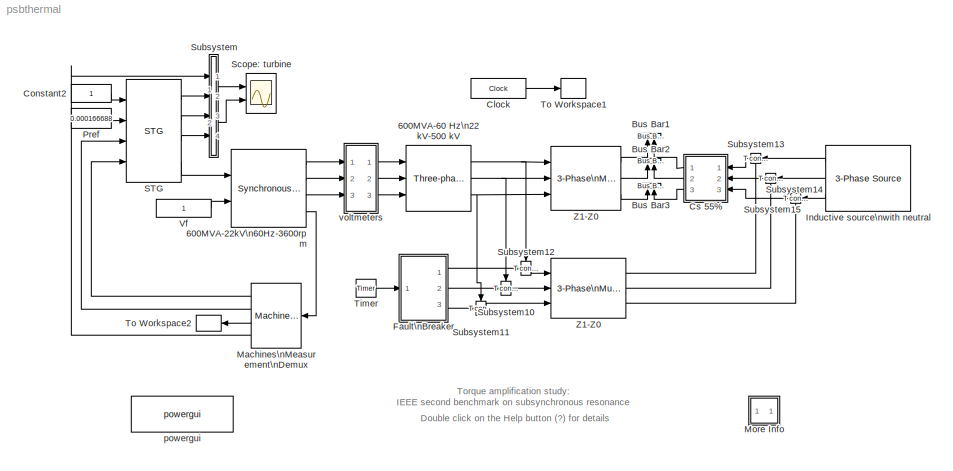
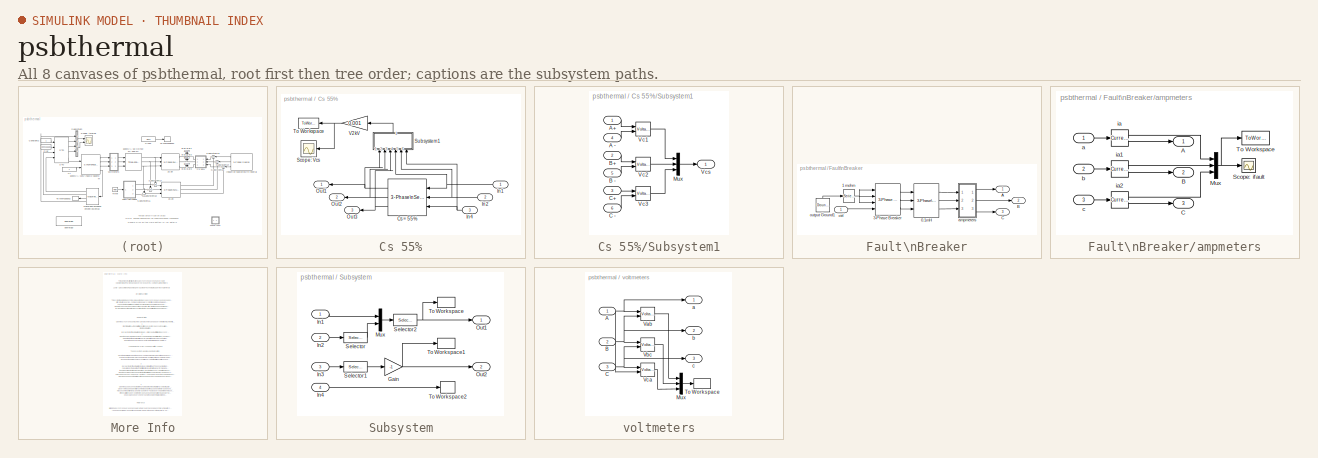
[diagram: thumbnail index - all 8 canvases of the model, root first then tree order]
MODEL psbthermal
KIND model
CONFIG InitFcn = powericon('psbinitsys',bdroot);
BLOCK [Reference] 600MVA-22kV\n60Hz-3600rpm  REF=powerlib2/Machines/Synchronous Machine\npu Fundamental
  LoadFlowParameters = [1 100000 0 0]
  PSBOutputType = 1110
  Ports = [2, 4]
  SourceBlock = powerlib2/Machines/Synchronous Machine\npu Fundamental
  SourceType = Synchronous Machine
  Tag = PoWeRsYsTeMbLoCk
  iounits = 0
  rotorType = Round
  x1 = [ 600e6  22e3   60 ]
  x2 = [  0.0045  0.14  1.51  1.45 ]
  x3 = [  0.00096  0.1186 ]
  x4 = [ 1.1685E-02  0.18167  1.9718E-02  038371 ]\n
  x4b = [ 0.016  0.132  0.00898  0.411  0.0116  0.0738 ]
  x5 = [ 0.87882   0.176*8   1 ]
  x6 = [0  0   0 0 0   0 0 0   0]
  x7 = off
  x8 = [0.6404,0.7127,0.8441,0.9214,0.9956,1.082,1.19,1.316,1.457;0.7,0.7698,0.8872,0.9466,0.9969,1.046,1.1,1.151,1.201]
BLOCK [Reference] 600MVA-60 Hz\n22 kV-500 kV  REF=powerlib2/Elements/Three-phase\nTransformer\n(Two Windings)
  PSBOutputType = 1111
  Ports = [3, 3]
  SourceBlock = powerlib2/Elements/Three-phase\nTransformer\n(Two Windings)
  SourceType = Three-Phase Transformer (Two Windings)
  Tag = PoWeRsYsTeMbLoCk
  hyst = off
  initialslopes = [+1 +1 +1]
  lm = 500
  matfile = 'hysteresis'
  mesure = None
  nominal = [ 600e6   60 ]
  params1 = [ 22e3  1e-6   0  ]
  params2 = [ 500e3  0.0012   0.12 ]
  phi0 = [ 0.8 , -0.8 , 0.7 ]
  rmag = 500
  sat = [ 0,0  ;  0.005,1.2  ;  1.0,1.4 ]
  sif = off
  type1 = Delta (D1)
  type2 = Yg
  ynsat = off
BLOCK [Reference] Bus Bar1  REF=powerlib2/Connectors/Bus Bar (horiz)
  PSBOutputType = 1111111111111111111111111111111111111111111111111111111111111111111111111
  Ports = [2]
  SourceBlock = powerlib2/Connectors/Bus Bar (horiz)
  SourceType = Bus Bar
  Tag = PoWeRsYsTeMbLoCk
  entrees = 2
  sorties = 0
BLOCK [Reference] Bus Bar2  REF=powerlib2/Connectors/Bus Bar (horiz)
  PSBOutputType = 1111111111111111111111111111111111111111111111111111111111111111111111111
  Ports = [2]
  SourceBlock = powerlib2/Connectors/Bus Bar (horiz)
  SourceType = Bus Bar
  Tag = PoWeRsYsTeMbLoCk
  entrees = 2
  sorties = 0
BLOCK [Reference] Bus Bar3  REF=powerlib2/Connectors/Bus Bar (horiz)
  PSBOutputType = 1111111111111111111111111111111111111111111111111111111111111111111111111
  Ports = [2]
  SourceBlock = powerlib2/Connectors/Bus Bar (horiz)
  SourceType = Bus Bar
  Tag = PoWeRsYsTeMbLoCk
  entrees = 2
  sorties = 0
BLOCK [Clock] Clock
  Decimation = 100
  DisplayTime = on
BLOCK [Constant] Constant2
BLOCK [SubSystem] Cs 55%
  MaskDisplay = plot(0,0,100,100,[40,10],[50,50],[90,60],[50,50],[40,40],[20,80],[60,60],[20,80])
  MaskIconFrame = on
  MaskIconOpaque = on
  MaskIconRotate = none
  MaskIconUnits = autoscale
  MinAlgLoopOccurrences = off
  Ports = [3, 3]
  RTWSystemCode = Auto
  TreatAsAtomicUnit = off
BLOCK [Reference] Cs 55%/Cs = 55%  REF=powerlib2/Elements/3-Phase\nSeries RLC Branch 
  C = 1/(0.55*0.5305*(120*pi)^2)
  L = 0
  Ports = [3, 3]
  R = 0
  SourceBlock = powerlib2/Elements/3-Phase\nSeries RLC Branch
  SourceType = 3-phase RLC series element
BLOCK [Inport] Cs 55%/In1
  IconDisplay = Port number
  LatchInput = off
  Port = 1
BLOCK [Inport] Cs 55%/In2
  IconDisplay = Port number
  LatchInput = off
  Port = 2
BLOCK [Inport] Cs 55%/In4
  IconDisplay = Port number
  LatchInput = off
  Port = 3
BLOCK [Outport] Cs 55%/Out1
  BusOutputAsStruct = off
  IconDisplay = Port number
BLOCK [Outport] Cs 55%/Out2
  BusOutputAsStruct = off
  IconDisplay = Port number
  Port = 2
BLOCK [Outport] Cs 55%/Out3
  BusOutputAsStruct = off
  IconDisplay = Port number
  Port = 3
BLOCK [Scope] Cs 55%/Scope: Vcs
  DataFormat = StructureWithTime
  LimitDataPoints = off
  NumInputPorts = 1
  Ports = [1]
  YMax = 500
  YMin = -500
BLOCK [SubSystem] Cs 55%/Subsystem1
  MinAlgLoopOccurrences = off
  Ports = [6, 1]
  RTWSystemCode = Auto
  TreatAsAtomicUnit = off
BLOCK [Inport] Cs 55%/Subsystem1/A -
  IconDisplay = Port number
  LatchInput = off
  Port = 4
BLOCK [Inport] Cs 55%/Subsystem1/A+
  IconDisplay = Port number
  LatchInput = off
  Port = 1
BLOCK [Inport] Cs 55%/Subsystem1/B -
  IconDisplay = Port number
  LatchInput = off
  Port = 5
BLOCK [Inport] Cs 55%/Subsystem1/B+
  IconDisplay = Port number
  LatchInput = off
  Port = 2
BLOCK [Inport] Cs 55%/Subsystem1/C -
  IconDisplay = Port number
  LatchInput = off
  Port = 6
BLOCK [Inport] Cs 55%/Subsystem1/C+
  IconDisplay = Port number
  LatchInput = off
  Port = 3
BLOCK [Mux] Cs 55%/Subsystem1/Mux
  DisplayOption = bar
  Inputs = 3
  Ports = [3, 1]
BLOCK [Reference] Cs 55%/Subsystem1/Vc1  REF=powerlib2/Measurements/Voltage Measurement
  OutputType = Magnitude
  PSBOutputType = 0
  PSBequivalent = 0
  PhasorSimulation = off
  Ports = [2, 1]
  SourceBlock = powerlib2/Measurements/Voltage Measurement
  SourceType = Voltage Measurement
  Tag = PoWeRsYsTeMmEaSuReMeNt
BLOCK [Reference] Cs 55%/Subsystem1/Vc2  REF=powerlib2/Measurements/Voltage Measurement
  OutputType = Magnitude
  PSBOutputType = 0
  PSBequivalent = 0
  PhasorSimulation = off
  Ports = [2, 1]
  SourceBlock = powerlib2/Measurements/Voltage Measurement
  SourceType = Voltage Measurement
  Tag = PoWeRsYsTeMmEaSuReMeNt
BLOCK [Reference] Cs 55%/Subsystem1/Vc3  REF=powerlib2/Measurements/Voltage Measurement
  OutputType = Magnitude
  PSBOutputType = 0
  PSBequivalent = 0
  PhasorSimulation = off
  Ports = [2, 1]
  SourceBlock = powerlib2/Measurements/Voltage Measurement
  SourceType = Voltage Measurement
  Tag = PoWeRsYsTeMmEaSuReMeNt
BLOCK [Outport] Cs 55%/Subsystem1/Vcs
  BusOutputAsStruct = off
  IconDisplay = Port number
BLOCK [ToWorkspace] Cs 55%/To Workspace
  MaxDataPoints = inf
  SaveFormat = Array
  VariableName = vcs
BLOCK [Gain] Cs 55%/V2kV
  Gain = 0.001
BLOCK [SubSystem] Fault\nBreaker
  MinAlgLoopOccurrences = off
  Ports = [1, 3]
  RTWSystemCode = Auto
  TreatAsAtomicUnit = off
BLOCK [Reference] Fault\nBreaker/0.1mH  REF=powerlib2/Elements/3-Phase\nSeries RLC Branch 
  C = inf
  L = 0.1e-3
  Ports = [3, 3]
  R = 0
  SourceBlock = powerlib2/Elements/3-Phase\nSeries RLC Branch
  SourceType = 3-phase RLC series element
BLOCK [Reference] Fault\nBreaker/1 mohm  REF=powerlib2/Elements/Series RLC Branch
  PSBOutputType = 1
  Ports = [1, 1]
  SourceBlock = powerlib2/Elements/Series RLC Branch
  SourceType = Series RLC Branch
  Tag = PoWeRsYsTeMbLoCk
  a = 0.001
  b = 0
  c = inf
  mesure = None
BLOCK [Reference] Fault\nBreaker/3-Phase Breaker  REF=powerlib2/Elements/3-Phase Breaker
  Cp = inf
  Ports = [4, 3]
  Ron = 0.001
  Rp = 1e6
  SourceBlock = powerlib2/Elements/3-Phase Breaker
  SourceType = Three-Phase Breaker
  Ts = 0
  comext = on
  init_states = open
  mesure = None
  sa = on
  sb = on
  sc = on
  sw_times = [4/60  10/60]
BLOCK [Outport] Fault\nBreaker/A
  BusOutputAsStruct = off
  IconDisplay = Port number
BLOCK [Outport] Fault\nBreaker/B
  BusOutputAsStruct = off
  IconDisplay = Port number
  Port = 2
BLOCK [Outport] Fault\nBreaker/C
  BusOutputAsStruct = off
  IconDisplay = Port number
  Port = 3
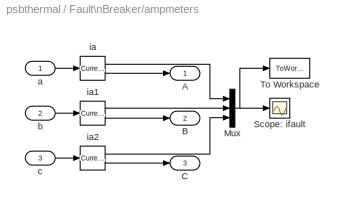
BLOCK [SubSystem] Fault\nBreaker/ampmeters
  MinAlgLoopOccurrences = off
  Ports = [3, 3]
  RTWSystemCode = Auto
  TreatAsAtomicUnit = off
BLOCK [Outport] Fault\nBreaker/ampmeters/A
  BusOutputAsStruct = off
  IconDisplay = Port number
BLOCK [Outport] Fault\nBreaker/ampmeters/B
  BusOutputAsStruct = off
  IconDisplay = Port number
  Port = 2
BLOCK [Outport] Fault\nBreaker/ampmeters/C
  BusOutputAsStruct = off
  IconDisplay = Port number
  Port = 3
BLOCK [Mux] Fault\nBreaker/ampmeters/Mux
  DisplayOption = bar
  Inputs = 3
  Ports = [3, 1]
BLOCK [Scope] Fault\nBreaker/ampmeters/Scope: ifault
  DataFormat = StructureWithTime
  LimitDataPoints = off
  NumInputPorts = 1
  Ports = [1]
  YMax = 9000
  YMin = -9000
BLOCK [ToWorkspace] Fault\nBreaker/ampmeters/To Workspace
  MaxDataPoints = inf
  SaveFormat = Array
  VariableName = ifault
BLOCK [Inport] Fault\nBreaker/ampmeters/a
  IconDisplay = Port number
  LatchInput = off
  Port = 1
BLOCK [Inport] Fault\nBreaker/ampmeters/b
  IconDisplay = Port number
  LatchInput = off
  Port = 2
BLOCK [Inport] Fault\nBreaker/ampmeters/c
  IconDisplay = Port number
  LatchInput = off
  Port = 3
BLOCK [Reference] Fault\nBreaker/ampmeters/ia  REF=powerlib2/Measurements/Current Measurement
  OutputType = Magnitude
  PSBOutputType = 01
  PSBequivalent = 0
  PhasorSimulation = off
  Ports = [1, 2]
  SourceBlock = powerlib2/Measurements/Current Measurement
  SourceType = Current Measurement
  Tag = PoWeRsYsTeMmEaSuReMeNt
BLOCK [Reference] Fault\nBreaker/ampmeters/ia1  REF=powerlib2/Measurements/Current Measurement
  OutputType = Magnitude
  PSBOutputType = 01
  PSBequivalent = 0
  PhasorSimulation = off
  Ports = [1, 2]
  SourceBlock = powerlib2/Measurements/Current Measurement
  SourceType = Current Measurement
  Tag = PoWeRsYsTeMmEaSuReMeNt
BLOCK [Reference] Fault\nBreaker/ampmeters/ia2  REF=powerlib2/Measurements/Current Measurement
  OutputType = Magnitude
  PSBOutputType = 01
  PSBequivalent = 0
  PhasorSimulation = off
  Ports = [1, 2]
  SourceBlock = powerlib2/Measurements/Current Measurement
  SourceType = Current Measurement
  Tag = PoWeRsYsTeMmEaSuReMeNt
BLOCK [Inport] Fault\nBreaker/ctrl
  IconDisplay = Port number
  LatchInput = off
  Port = 1
BLOCK [Reference] Fault\nBreaker/output Ground1  REF=powerlib2/Connectors/Ground (output)
  PSBOutputType = 1
  Ports = [0, 1]
  SourceBlock = powerlib2/Connectors/Ground (output)
  SourceType = Ground
  Tag = PoWeRsYsTeMbLoCk
BLOCK [Reference] Inductive source\nwith neutral  REF=powerlib2/Electrical\nSources/3-Phase Source
  F = 60
  InternalConnection = Yg
  L = 0.1989
  PSBOutputType = 111
  Phi = 0
  Ports = [0, 3]
  Psc = 0
  R = 3.5
  RLoff = off
  SourceBlock = powerlib2/Electrical\nSources/3-Phase Source
  SourceType = 3-Phase Source
  Tag = PoWeRsYsTeMbLoCk
  V = 500e3
  Vbase = 0
  XRratio = 0
BLOCK [Reference] Machines\nMeasurement\nDemux  REF=powerlib2/Machines/Machines\nMeasurement\nDemux
  Ports = [1, 4]
  SourceBlock = powerlib2/Machines/Machines\nMeasurement\nDemux
  SourceType = Machine measurements
  asm1 = on
  asm10 = on
  asm11 = on
  asm2 = on
  asm3 = on
  asm4 = on
  asm5 = on
  asm6 = on
  asm7 = on
  asm8 = on
  asm9 = on
  lastType = 2
  machType = Synchronous
  pmsm1 = on
  pmsm2 = on
  pmsm3 = on
  pmsm4 = on
  pmsm5 = on
  pmsm6 = on
  sm1 = off
  sm10 = on
  sm11 = off
  sm115 = off
  sm12 = off
  sm13 = off
  sm14 = off
  sm2 = off
  sm3 = off
  sm4 = off
  sm5 = off
  sm6 = off
  sm7 = on
  sm8 = on
  sm9 = on
  ssm1 = on
  ssm2 = on
  ssm3 = on
  ssm4 = on
  ssm5 = on
  ssm6 = on
BLOCK [SubSystem] More Info
  MaskDisplay = disp('?')
  MaskIconFrame = on
  MaskIconOpaque = on
  MaskIconRotate = none
  MaskIconUnits = autoscale
  MinAlgLoopOccurrences = off
  Ports = []
  RTWSystemCode = Auto
  TreatAsAtomicUnit = off
BLOCK [Constant] Pref
  Value = 0.000166688
BLOCK [Reference] STG  REF=powerlib2/Machines/STG
  DA = [  0.3104  0.05  0  0 ]*8
  HA = [  1.5498   0.24894  0  0 ]
  KA = [  83.47  42.702  0  0 ]
  Ports = [4, 4]
  SourceBlock = powerlib2/Machines/STG
  SourceType = Steam Turbine and Governor
  gentype = Tandem-compound (multi-mass)
  ini1 = 250.35/555
  ini2 = [0.000166688,-120.04]
  reg1 = [ 1  0.05    0 ]
  reg2 = [ 0.001  0.15 ]
  reg3 = [ -0.1  0.1  0.00016668  0.00016668*1.01 ]
  turb1 = [ 0  10   3.3   0.5   ]
  turb2 = [ 0.5   0.5   0  0 ]
BLOCK [Scope] Scope: turbine
  DataFormat = StructureWithTime
  LimitDataPoints = off
  NumInputPorts = 2
  Ports = [2]
  TimeRange = 0.5
  YMax = 0.6~130
  YMin = -0.9~-70
  ZoomMode = xonly
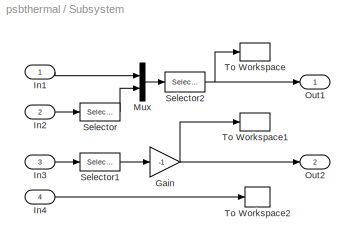
BLOCK [SubSystem] Subsystem
  MinAlgLoopOccurrences = off
  Ports = [4, 2]
  RTWSystemCode = Auto
  TreatAsAtomicUnit = off
BLOCK [Gain] Subsystem/Gain
  Gain = -1
BLOCK [Inport] Subsystem/In1
  IconDisplay = Port number
  LatchInput = off
  Port = 1
BLOCK [Inport] Subsystem/In2
  IconDisplay = Port number
  LatchInput = off
  Port = 2
BLOCK [Inport] Subsystem/In3
  IconDisplay = Port number
  LatchInput = off
  Port = 3
BLOCK [Inport] Subsystem/In4
  IconDisplay = Port number
  LatchInput = off
  Port = 4
BLOCK [Mux] Subsystem/Mux
  DisplayOption = bar
  Inputs = 2
  Ports = [2, 1]
BLOCK [Outport] Subsystem/Out1
  BusOutputAsStruct = off
  IconDisplay = Port number
BLOCK [Outport] Subsystem/Out2
  BusOutputAsStruct = off
  IconDisplay = Port number
  Port = 2
BLOCK [Selector] Subsystem/Selector
  Elements = [3 4]
  InputPortWidth = 4
  Ports = [1, 1]
BLOCK [Selector] Subsystem/Selector1
  Elements = [3 4]
  InputPortWidth = 4
  Ports = [1, 1]
BLOCK [Selector] Subsystem/Selector2
  Elements = [2 3 1]
  InputPortWidth = 3
  Ports = [1, 1]
BLOCK [ToWorkspace] Subsystem/To Workspace
  MaxDataPoints = inf
  SaveFormat = Array
  VariableName = dw
BLOCK [ToWorkspace] Subsystem/To Workspace1
  MaxDataPoints = inf
  SaveFormat = Array
  VariableName = T
BLOCK [ToWorkspace] Subsystem/To Workspace2
  MaxDataPoints = inf
  SaveFormat = Array
  VariableName = g
BLOCK [Reference] Subsystem10  REF=powerlib2/Connectors/T connector
  PSBOutputType = 1
  Ports = [1, 1, 1]
  SourceBlock = powerlib2/Connectors/T connector
  SourceType = Bus Bar
  Tag = PoWeRsYsTeMbLoCk
BLOCK [Reference] Subsystem11  REF=powerlib2/Connectors/T connector
  PSBOutputType = 1
  Ports = [1, 1, 1]
  SourceBlock = powerlib2/Connectors/T connector
  SourceType = Bus Bar
  Tag = PoWeRsYsTeMbLoCk
BLOCK [Reference] Subsystem12  REF=powerlib2/Connectors/T connector
  PSBOutputType = 1
  Ports = [1, 1, 1]
  SourceBlock = powerlib2/Connectors/T connector
  SourceType = Bus Bar
  Tag = PoWeRsYsTeMbLoCk
BLOCK [Reference] Subsystem13  REF=powerlib2/Connectors/T connector
  PSBOutputType = 1
  Ports = [1, 1, 1]
  SourceBlock = powerlib2/Connectors/T connector
  SourceType = Bus Bar
  Tag = PoWeRsYsTeMbLoCk
BLOCK [Reference] Subsystem14  REF=powerlib2/Connectors/T connector
  PSBOutputType = 1
  Ports = [1, 1, 1]
  SourceBlock = powerlib2/Connectors/T connector
  SourceType = Bus Bar
  Tag = PoWeRsYsTeMbLoCk
BLOCK [Reference] Subsystem15  REF=powerlib2/Connectors/T connector
  PSBOutputType = 1
  Ports = [1, 1, 1]
  SourceBlock = powerlib2/Connectors/T connector
  SourceType = Bus Bar
  Tag = PoWeRsYsTeMbLoCk
BLOCK [Reference] Timer  REF=powerlib_extras/Control \nBlocks/Timer
  Ports = [0, 1]
  SourceBlock = powerlib_extras/Control \nBlocks/Timer
  SourceType = Timer
  e = [ 1 0 ]
  t = [ 0.022289  0.022289+0.017 ]
BLOCK [ToWorkspace] To Workspace1
  MaxDataPoints = inf
  SaveFormat = Array
  VariableName = t
BLOCK [ToWorkspace] To Workspace2
  MaxDataPoints = inf
  SaveFormat = Array
  VariableName = Pe
BLOCK [Constant] Vf
BLOCK [Reference] Z1-Z0  REF=powerlib2/Elements/3-Phase\nMutual Inductance\nZ1-Z0
  Ports = [3, 3]
  RL0 = [ 55.0  1.5915 ]
  RL1 = [ 18.5  0.5305 ]
  SourceBlock = powerlib2/Elements/3-Phase\nMutual Inductance\nZ1-Z0
  SourceType = 3-phase RL  positive & zero-sequence impedance
BLOCK [Reference] Z1-Z0   REF=powerlib2/Elements/3-Phase\nMutual Inductance\nZ1-Z0
  Ports = [3, 3]
  RL0 = [ 46.5  1.3926 ]
  RL1 = [ 16.75  0.4901 ]
  SourceBlock = powerlib2/Elements/3-Phase\nMutual Inductance\nZ1-Z0
  SourceType = 3-phase RL  positive & zero-sequence impedance
BLOCK [Reference] powergui  REF=powerlib2/powergui
  DisplayStyle = off
  Frange = logspace(0,3,50)
  FreqAxis = off
  MaxFrequency = 1000
  Ports = []
  RmsSteady = 1
  SourceBlock = powerlib2/powergui
  SourceType = PSB option menu block
  StartTime = 0.0
  Ts = 0
  Xlog = off
  Ylog = off
  ZoomFFT = on
  cycles = 2
  display = off
  echomessages = off
  frequency = 60
  frequencyindice = 1
  frequencyindicesteady = 1
  fundamental = 60
  methode = off
  save = off
  variable = ZData
BLOCK [SubSystem] voltmeters
  MinAlgLoopOccurrences = off
  Ports = [3, 3]
  RTWSystemCode = Auto
  TreatAsAtomicUnit = off
BLOCK [Inport] voltmeters/A
  IconDisplay = Port number
  LatchInput = off
  Port = 1
BLOCK [Inport] voltmeters/B
  IconDisplay = Port number
  LatchInput = off
  Port = 2
BLOCK [Inport] voltmeters/C
  IconDisplay = Port number
  LatchInput = off
  Port = 3
BLOCK [Mux] voltmeters/Mux
  DisplayOption = bar
  Inputs = 3
  Ports = [3, 1]
BLOCK [ToWorkspace] voltmeters/To Workspace
  MaxDataPoints = inf
  SaveFormat = Array
  VariableName = vt
BLOCK [Reference] voltmeters/Vab  REF=powerlib2/Measurements/Voltage Measurement
  OutputType = Magnitude
  PSBOutputType = 0
  PSBequivalent = 0
  PhasorSimulation = off
  Ports = [2, 1]
  SourceBlock = powerlib2/Measurements/Voltage Measurement
  SourceType = Voltage Measurement
  Tag = PoWeRsYsTeMmEaSuReMeNt
BLOCK [Reference] voltmeters/Vbc  REF=powerlib2/Measurements/Voltage Measurement
  OutputType = Magnitude
  PSBOutputType = 0
  PSBequivalent = 0
  PhasorSimulation = off
  Ports = [2, 1]
  SourceBlock = powerlib2/Measurements/Voltage Measurement
  SourceType = Voltage Measurement
  Tag = PoWeRsYsTeMmEaSuReMeNt
BLOCK [Reference] voltmeters/Vca  REF=powerlib2/Measurements/Voltage Measurement
  OutputType = Magnitude
  PSBOutputType = 0
  PSBequivalent = 1
  PhasorSimulation = off
  Ports = [2, 1]
  SourceBlock = powerlib2/Measurements/Voltage Measurement
  SourceType = Voltage Measurement
  Tag = PoWeRsYsTeMmEaSuReMeNt
BLOCK [Outport] voltmeters/a
  BusOutputAsStruct = off
  IconDisplay = Port number
BLOCK [Outport] voltmeters/b
  BusOutputAsStruct = off
  IconDisplay = Port number
  Port = 2
BLOCK [Outport] voltmeters/c
  BusOutputAsStruct = off
  IconDisplay = Port number
  Port = 3
ANNOTATION (root): Double click on the Help button (?) for details
ANNOTATION (root): Torque amplification study:\nIEEE second benchmark on subsynchronous resonance
ANNOTATION More Info: 1
ANNOTATION More Info: 2
ANNOTATION More Info: 3
ANNOTATION More Info: 4
ANNOTATION More Info: Circuit Description
ANNOTATION More Info: Demonstration
ANNOTATION More Info: In order to start the simulation in steady state with the STG connected, this Simulink block must also be initialized according to the values \ncalculated by the load flow. This initialization is automatically performed when you execute the Load Flow, as long as you connect at\nthe Pm and Vf inputs of the machine either Constant blocks or regulation blocks from the machine library (HTG, STG, or Ex...<+457ch>
ANNOTATION More Info: In order to start the simulation in steady-state you must initialize the synchronous machine for the desired load flow.\nOpen the POWERGUI and select \"Load Flow & Machine initialization\" . The machine \"Bus type\" should be already initialized as \"PV generator\",\nindicating that the load flow will be performed with the machine controlling its active power and terminal voltage.\nSpecify the des...<+49ch>
ANNOTATION More Info: Load Flow: U AB (Vrms) = 22000 , P (wattts) =100e3
ANNOTATION More Info: Louis-A. Dessaint and R. Champagne (Ecole de Technologie Superieure, Montreal)
ANNOTATION More Info: Open the Scope connected to the STG model. Run the simulation by selecting Start from the Simulation menu. \nObserve the speed deviations on the top axis of the Scope and the torques transmitted between the shaft's \nmasses on the bottom axis. A peak torque of over 4 pu is observed between masses 1 and 2. The frequency \nof the oscillations oberved in the torques and speed deviations is about 27 H...<+95ch>
ANNOTATION More Info: Open the synchronous machine (SM) block menu and observe that the machine intial conditions (last line) are set to zero.\nStart Simulation. As the SM initial conditions are not properly set you will observe that simulation does not start in steady state.\nStop the simulation.
ANNOTATION More Info: Reference
ANNOTATION More Info: Then press the \"Update Load Flow\" button.\n\nOnce the load flow is solved the phasors of AB and BC machine voltages and currents flowing in phases A and B are updated.\nThe SM reactive power, mechanical power and field voltage are displayed : Q = 1.30 Mvar, Pmec = 100 kW (0.0001667 pu), field voltage Ef = 1.0036 pu;\nIf you open the SM block menu you will observe that the initial conditions have...<+14ch>
ANNOTATION More Info: This demonstration illustrates subsynchronous resonance (SSR)\nusing the Steam Turbine and Governor on a series-compensated network
ANNOTATION More Info: This system is an IEEE benchmark [1] used to study subsynchronous resonance and particularly torque amplification\nafter a fault on a series-compensated power system. It consists in a single generator (600 MVA/22kV/60 Hz/3600 rpm)\nconnected to an infinite bus via two transmission lines, one of which is series-compensated. The subsynchronous \nmode introduced by the compensation capacitor after a ...<+157ch>
ANNOTATION More Info: [1] IEEE Subsynchronous resonance working group, \"Second benchmark model for computer simulation of subsynchronous\n resonance\", IEEE Transactions on power apparatus and systems, vol. PAS-104, no. 5, 1985, pp. 1057-1066.
LINE 600MVA-22kV\n60Hz-3600rpm:1 -> voltmeters:1
LINE 600MVA-22kV\n60Hz-3600rpm:2 -> voltmeters:2
LINE 600MVA-22kV\n60Hz-3600rpm:3 -> voltmeters:3
LINE 600MVA-22kV\n60Hz-3600rpm:4 -> Machines\nMeasurement\nDemux:1
NET 600MVA-60 Hz\n22 kV-500 kV:1 -> Subsystem12:enable, Z1-Z0:1
NET 600MVA-60 Hz\n22 kV-500 kV:2 -> Subsystem10:enable, Z1-Z0:2
NET 600MVA-60 Hz\n22 kV-500 kV:3 -> Subsystem11:enable, Z1-Z0:3
LINE Clock:1 -> To Workspace1:1
LINE Constant2:1 -> STG:1
NET Cs 55%/Cs = 55%:1 -> Cs 55%/Out1:1, Cs 55%/Subsystem1:1
NET Cs 55%/Cs = 55%:2 -> Cs 55%/Out2:1, Cs 55%/Subsystem1:2
NET Cs 55%/Cs = 55%:3 -> Cs 55%/Out3:1, Cs 55%/Subsystem1:3
NET Cs 55%/In1:1 -> Cs 55%/Cs = 55%:1, Cs 55%/Subsystem1:4
NET Cs 55%/In2:1 -> Cs 55%/Cs = 55%:2, Cs 55%/Subsystem1:5
NET Cs 55%/In4:1 -> Cs 55%/Cs = 55%:3, Cs 55%/Subsystem1:6
LINE Cs 55%/Subsystem1/A -:1 -> Cs 55%/Subsystem1/Vc1:2
LINE Cs 55%/Subsystem1/A+:1 -> Cs 55%/Subsystem1/Vc1:1
LINE Cs 55%/Subsystem1/B -:1 -> Cs 55%/Subsystem1/Vc2:2
LINE Cs 55%/Subsystem1/B+:1 -> Cs 55%/Subsystem1/Vc2:1
LINE Cs 55%/Subsystem1/C -:1 -> Cs 55%/Subsystem1/Vc3:2
LINE Cs 55%/Subsystem1/C+:1 -> Cs 55%/Subsystem1/Vc3:1
LINE Cs 55%/Subsystem1/Mux:1 -> Cs 55%/Subsystem1/Vcs:1
LINE Cs 55%/Subsystem1/Vc1:1 -> Cs 55%/Subsystem1/Mux:1
LINE Cs 55%/Subsystem1/Vc2:1 -> Cs 55%/Subsystem1/Mux:2
LINE Cs 55%/Subsystem1/Vc3:1 -> Cs 55%/Subsystem1/Mux:3
LINE Cs 55%/Subsystem1:1 -> Cs 55%/V2kV:1
NET Cs 55%/V2kV:1 -> Cs 55%/Scope: Vcs:1, Cs 55%/To Workspace:1
LINE Cs 55%:1 -> Bus Bar1:2
LINE Cs 55%:2 -> Bus Bar2:2
LINE Cs 55%:3 -> Bus Bar3:2
LINE Fault\nBreaker/0.1mH:1 -> Fault\nBreaker/ampmeters:1
LINE Fault\nBreaker/0.1mH:2 -> Fault\nBreaker/ampmeters:2
LINE Fault\nBreaker/0.1mH:3 -> Fault\nBreaker/ampmeters:3
NET Fault\nBreaker/1 mohm:1 -> Fault\nBreaker/3-Phase Breaker:1, Fault\nBreaker/3-Phase Breaker:2, Fault\nBreaker/3-Phase Breaker:3
LINE Fault\nBreaker/3-Phase Breaker:1 -> Fault\nBreaker/0.1mH:1
LINE Fault\nBreaker/3-Phase Breaker:2 -> Fault\nBreaker/0.1mH:2
LINE Fault\nBreaker/3-Phase Breaker:3 -> Fault\nBreaker/0.1mH:3
NET Fault\nBreaker/ampmeters/Mux:1 -> Fault\nBreaker/ampmeters/Scope: ifault:1, Fault\nBreaker/ampmeters/To Workspace:1
LINE Fault\nBreaker/ampmeters/a:1 -> Fault\nBreaker/ampmeters/ia:1
LINE Fault\nBreaker/ampmeters/b:1 -> Fault\nBreaker/ampmeters/ia1:1
LINE Fault\nBreaker/ampmeters/c:1 -> Fault\nBreaker/ampmeters/ia2:1
LINE Fault\nBreaker/ampmeters/ia1:1 -> Fault\nBreaker/ampmeters/Mux:2
LINE Fault\nBreaker/ampmeters/ia1:2 -> Fault\nBreaker/ampmeters/B:1
LINE Fault\nBreaker/ampmeters/ia2:1 -> Fault\nBreaker/ampmeters/Mux:3
LINE Fault\nBreaker/ampmeters/ia2:2 -> Fault\nBreaker/ampmeters/C:1
LINE Fault\nBreaker/ampmeters/ia:1 -> Fault\nBreaker/ampmeters/Mux:1
LINE Fault\nBreaker/ampmeters/ia:2 -> Fault\nBreaker/ampmeters/A:1
LINE Fault\nBreaker/ampmeters:1 -> Fault\nBreaker/A:1
LINE Fault\nBreaker/ampmeters:2 -> Fault\nBreaker/B:1
LINE Fault\nBreaker/ampmeters:3 -> Fault\nBreaker/C:1
LINE Fault\nBreaker/ctrl:1 -> Fault\nBreaker/3-Phase Breaker:4
LINE Fault\nBreaker/output Ground1:1 -> Fault\nBreaker/1 mohm:1
LINE Fault\nBreaker:1 -> Subsystem12:1
LINE Fault\nBreaker:2 -> Subsystem10:1
LINE Fault\nBreaker:3 -> Subsystem11:1
LINE Inductive source\nwith neutral:1 -> Subsystem13:1
LINE Inductive source\nwith neutral:2 -> Subsystem14:1
LINE Inductive source\nwith neutral:3 -> Subsystem15:1
LINE Machines\nMeasurement\nDemux:1 -> STG:4
LINE Machines\nMeasurement\nDemux:2 -> STG:3
LINE Machines\nMeasurement\nDemux:3 -> To Workspace2:1
LINE Machines\nMeasurement\nDemux:4 -> Subsystem:1
LINE Pref:1 -> STG:2
LINE STG:1 -> Subsystem:2
LINE STG:2 -> Subsystem:3
LINE STG:3 -> Subsystem:4
LINE STG:4 -> 600MVA-22kV\n60Hz-3600rpm:1
NET Subsystem/Gain:1 -> Subsystem/Out2:1, Subsystem/To Workspace1:1
LINE Subsystem/In1:1 -> Subsystem/Mux:1
LINE Subsystem/In2:1 -> Subsystem/Selector:1
LINE Subsystem/In3:1 -> Subsystem/Selector1:1
LINE Subsystem/In4:1 -> Subsystem/To Workspace2:1
LINE Subsystem/Mux:1 -> Subsystem/Selector2:1
LINE Subsystem/Selector1:1 -> Subsystem/Gain:1
NET Subsystem/Selector2:1 -> Subsystem/Out1:1, Subsystem/To Workspace:1
LINE Subsystem/Selector:1 -> Subsystem/Mux:2
LINE Subsystem10:1 -> Z1-Z0 :2
LINE Subsystem11:1 -> Z1-Z0 :3
LINE Subsystem12:1 -> Z1-Z0 :1
LINE Subsystem13:1 -> Cs 55%:1
LINE Subsystem14:1 -> Cs 55%:2
LINE Subsystem15:1 -> Cs 55%:3
LINE Subsystem:1 -> Scope: turbine:1
LINE Subsystem:2 -> Scope: turbine:2
LINE Timer:1 -> Fault\nBreaker:1
LINE Vf:1 -> 600MVA-22kV\n60Hz-3600rpm:2
LINE Z1-Z0 :1 -> Subsystem13:enable
LINE Z1-Z0 :2 -> Subsystem14:enable
LINE Z1-Z0 :3 -> Subsystem15:enable
LINE Z1-Z0:1 -> Bus Bar1:1
LINE Z1-Z0:2 -> Bus Bar2:1
LINE Z1-Z0:3 -> Bus Bar3:1
NET voltmeters/A:1 -> voltmeters/Vab:1, voltmeters/Vca:2, voltmeters/a:1
NET voltmeters/B:1 -> voltmeters/Vab:2, voltmeters/Vbc:1, voltmeters/b:1
NET voltmeters/C:1 -> voltmeters/Vbc:2, voltmeters/Vca:1, voltmeters/c:1
LINE voltmeters/Mux:1 -> voltmeters/To Workspace:1
LINE voltmeters/Vab:1 -> voltmeters/Mux:1
LINE voltmeters/Vbc:1 -> voltmeters/Mux:2
LINE voltmeters/Vca:1 -> voltmeters/Mux:3
LINE voltmeters:1 -> 600MVA-60 Hz\n22 kV-500 kV:1
LINE voltmeters:2 -> 600MVA-60 Hz\n22 kV-500 kV:2
LINE voltmeters:3 -> 600MVA-60 Hz\n22 kV-500 kV:3
note: NET lines group one-source signal fan-out (src -> all destinations, sorted); 1:1 wires keep LINE
